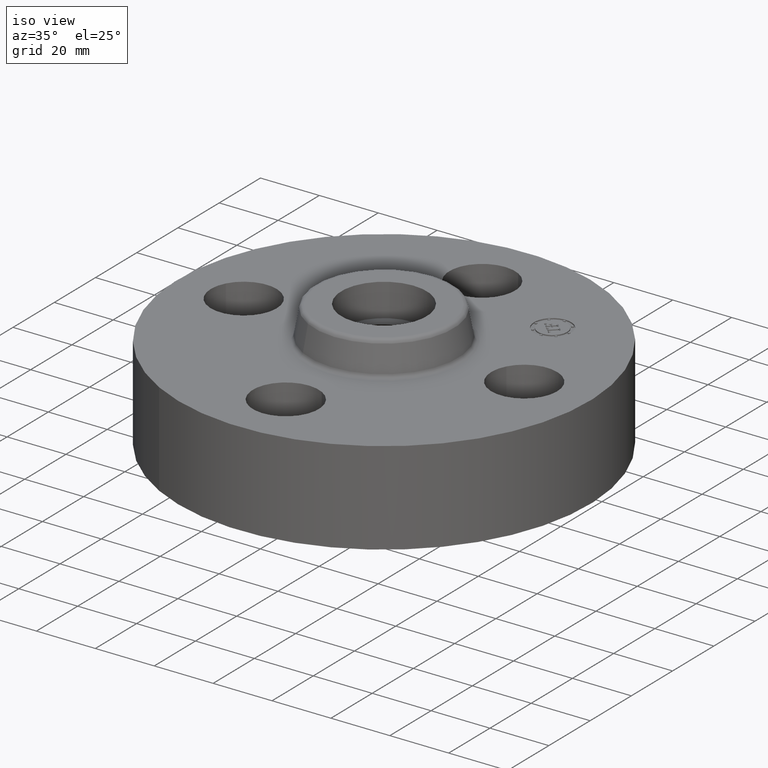
[diagram: clean part render]
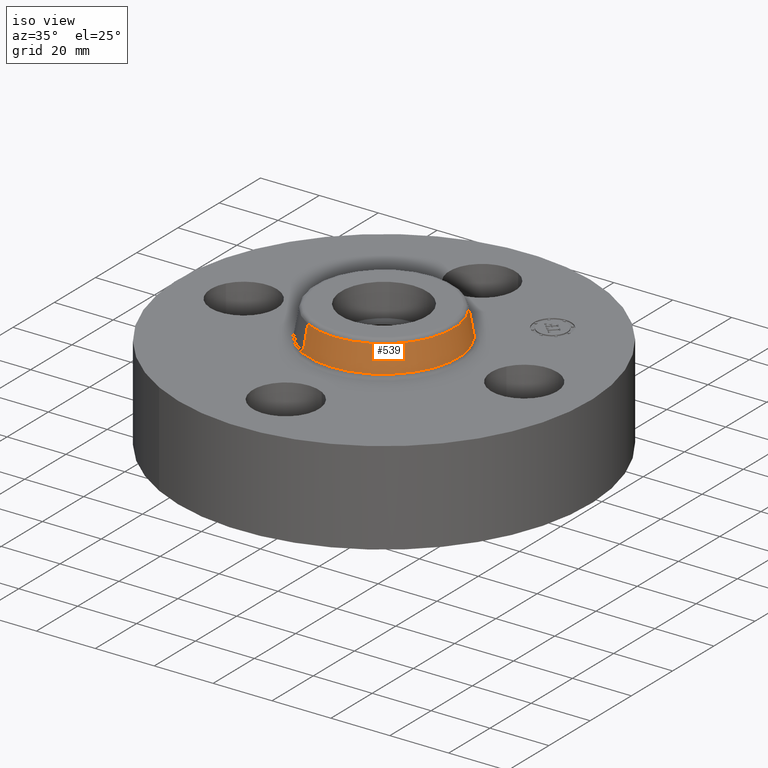
[diagram: same view with one face highlighted and labeled with its STEP entity id]
A machine part, iso view. The second image highlights one B-rep face of the part: STEP entity #539.
In plain terms, the highlighted conical surface has half-angle 10 deg.
Its self-contained STEP definition (entity closure, byte-faithful):
#475=AXIS2_PLACEMENT_3D('Circle Axis2P3D',#473,#474,$) ;
#512=AXIS2_PLACEMENT_3D('Cone Axis2P3D',#509,#510,#511) ;
#523=AXIS2_PLACEMENT_3D('Circle Axis2P3D',#521,#522,$) ;
#470=CARTESIAN_POINT('Vertex',(0.475234166919,0.869910307483,1.29958110935)) ;
#473=CARTESIAN_POINT('Axis2P3D Location',(0.,0.,1.29958110935)) ;
#477=CARTESIAN_POINT('Vertex',(-0.475234166919,-0.869910307483,1.29958110935)) ;
#509=CARTESIAN_POINT('Axis2P3D Location',(0.,0.,1.64041889067)) ;
#514=CARTESIAN_POINT('Line Origine',(0.460827693913,0.843539435532,1.47000000001)) ;
#518=CARTESIAN_POINT('Vertex',(0.446421220907,0.817168563582,1.64041889067)) ;
#521=CARTESIAN_POINT('Axis2P3D Location',(0.,0.,1.64041889067)) ;
#525=CARTESIAN_POINT('Vertex',(-0.446421220907,-0.817168563582,1.64041889067)) ;
#528=CARTESIAN_POINT('Line Origine',(-0.460827693913,-0.843539435532,1.47000000001)) ;
#474=DIRECTION('Axis2P3D Direction',(0.,0.,-0.0393700787402)) ;
#510=DIRECTION('Axis2P3D Direction',(0.,0.,-0.0393700787402)) ;
#511=DIRECTION('Axis2P3D XDirection',(-0.0188750212049,-0.0345504945626,0.)) ;
#515=DIRECTION('Vector Direction',(0.00327761303565,0.00599963041829,-0.03877195878)) ;
#522=DIRECTION('Axis2P3D Direction',(0.,0.,-0.0393700787402)) ;
#529=DIRECTION('Vector Direction',(-0.00327761303565,-0.00599963041829,-0.03877195878)) ;
#516=VECTOR('Line Direction',#515,0.0393700787402) ;
#530=VECTOR('Line Direction',#529,0.0393700787402) ;
#534=ORIENTED_EDGE('',*,*,#479,.F.) ;
#535=ORIENTED_EDGE('',*,*,#520,.T.) ;
#536=ORIENTED_EDGE('',*,*,#527,.T.) ;
#537=ORIENTED_EDGE('',*,*,#532,.F.) ;
#539=ADVANCED_FACE('PartBody',(#538),#513,.T.) ;
#476=CIRCLE('generated circle',#475,0.991257512694) ;
#524=CIRCLE('generated circle',#523,0.931158615802) ;
#513=CONICAL_SURFACE('Cone',#512,0.931158615802,0.174532925199) ;
#479=EDGE_CURVE('',#471,#478,#476,.T.) ;
#520=EDGE_CURVE('',#471,#519,#517,.F.) ;
#527=EDGE_CURVE('',#519,#526,#524,.T.) ;
#532=EDGE_CURVE('',#478,#526,#531,.F.) ;
#533=EDGE_LOOP('',(#534,#535,#536,#537)) ;
#538=FACE_OUTER_BOUND('',#533,.T.) ;
#517=LINE('Line',#514,#516) ;
#531=LINE('Line',#528,#530) ;
#471=VERTEX_POINT('',#470) ;
#478=VERTEX_POINT('',#477) ;
#519=VERTEX_POINT('',#518) ;
#526=VERTEX_POINT('',#525) ;